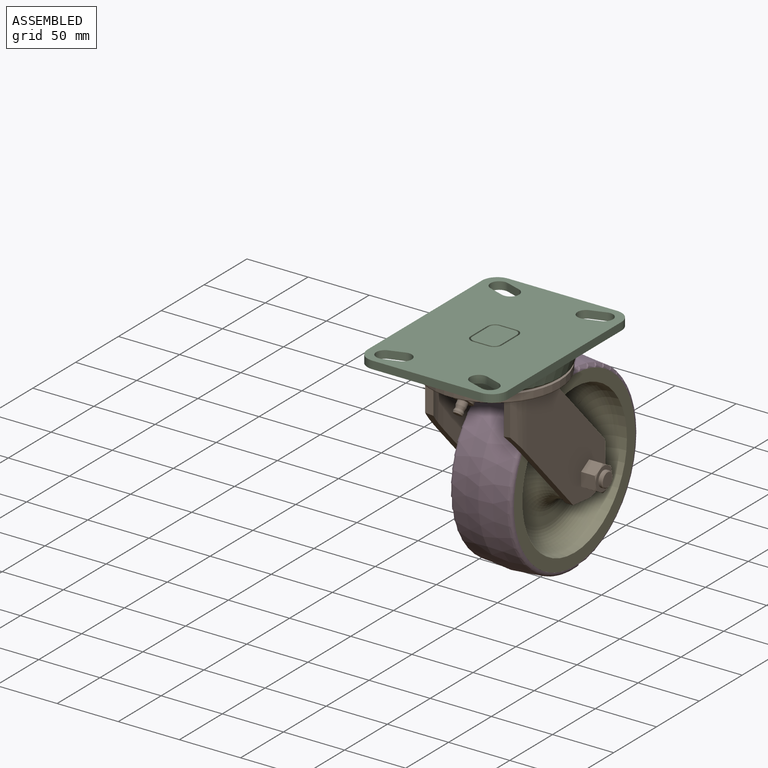
[diagram: assembled view]
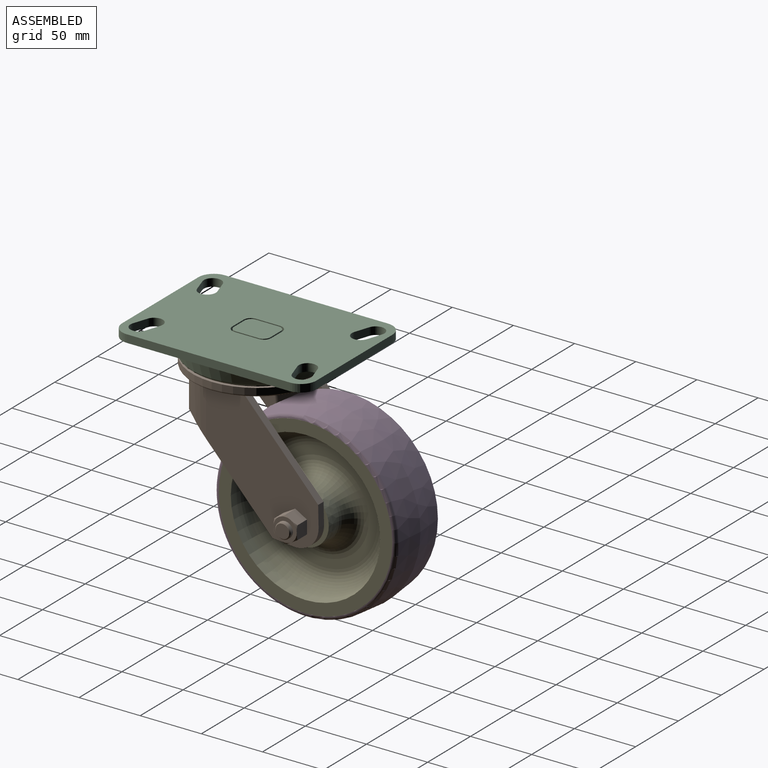
[diagram: assembled view, second angle]
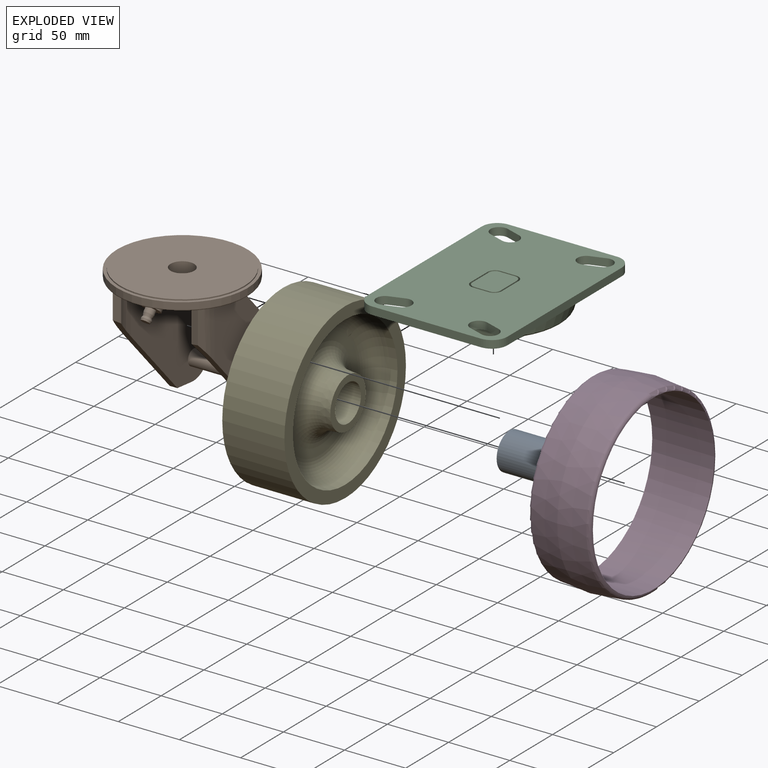
[diagram: exploded view]
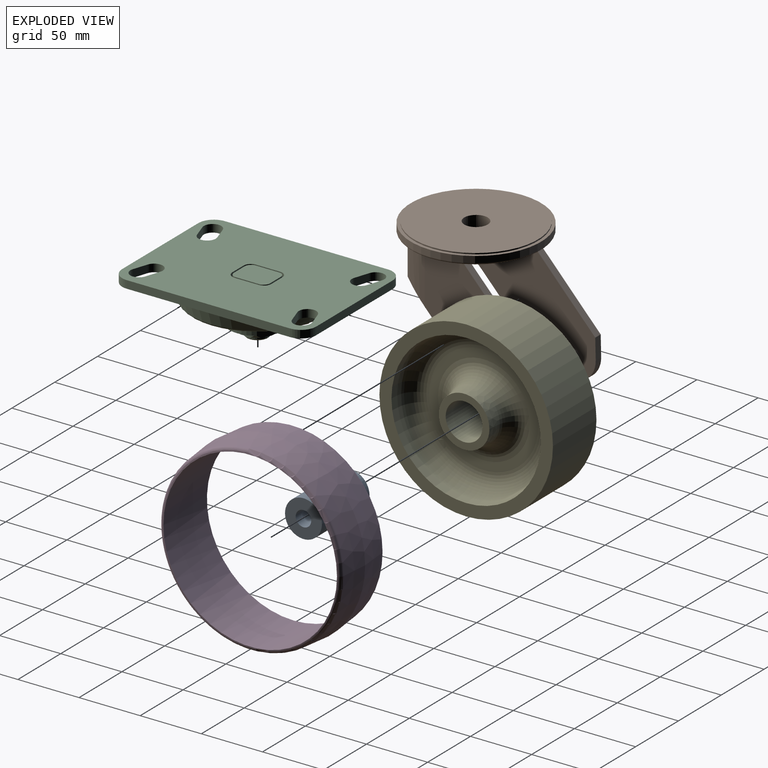
[diagram: exploded view, second angle]
ASSEMBLY  parts=5 mates=4
PART A: 4 faces, bbox 55.6x30.2x30.2 mm
  f0: plane 30.18x30.18mm, normal (-1,0,0), area 588.5mm2, adj f1,f3
  f1: cylinder r=15.09mm len=55.58mm, axis (1,0,0), area 5268.4mm2, adj f0,f2
  f2: plane 30.18x30.18mm, normal (1,0,0), area 588.5mm2, adj f1,f3
  f3: cylinder r=6.35mm len=55.58mm, axis (1,0,0), area 2217.4mm2, adj f0,f2
PART B: 88 faces, bbox 134.2x114.3x115.7 mm
  f0: plane 19.05x19.05mm, normal (0,0,-1), area 184.3mm2, adj f55,f56,f57,f58,f59,f60,f77
  f1: plane 85.34x52.83mm, normal (0,-1,0), area 3665.8mm2, adj f12,f13,f17,f28,f29,f41,f42
  f2: cylinder r=49.53mm len=45.66mm, axis (0,1,0), area 592.9mm2, adj f3,f6,f19,f40
  f3: plane 29.95x5.97mm, normal (-0.98,0,0.2), area 178.4mm2, adj f2,f4,f19,f40
  f4: cylinder r=49.53mm len=45.66mm, axis (0,1,0), area 555.8mm2, adj f3,f5,f19,f40
  f5: plane 106.43x92.08mm, normal (0,0,1), area 5577.9mm2, adj f4,f19,f36,f37,f38,f39,f40,f48
  f6: plane 106.43x92.08mm, normal (0,0,-1), area 5390.3mm2, adj f2,f19,f36,f37,f38,f39,f40,f49
  f7: plane 29.95x5.97mm, normal (-0.98,0,-0.2), area 178.4mm2, adj f8,f11,f19,f35
  f8: cylinder r=49.53mm len=45.66mm, axis (0,1,0), area 592.9mm2, adj f7,f9,f19,f35
  f9: plane 106.43x92.08mm, normal (0,0,1), area 5390.3mm2, adj f8,f19,f31,f32,f33,f34,f35,f61
  f10: plane 106.43x92.08mm, normal (0,0,-1), area 5577.9mm2, adj f11,f19,f31,f32,f33,f34,f35,f48
  f11: cylinder r=49.53mm len=45.66mm, axis (0,1,0), area 555.8mm2, adj f7,f10,f19,f35
  f12: cylinder r=9.65mm len=19.3mm, axis (0,-1,0), area 724mm2, adj f1,f24
  f13: torus R=41.91mm, axis (0,-1,0), area 69.7mm2, adj f1,f18,f28,f29
  f14: cylinder r=43.18mm len=55.37mm, axis (0,-1,0), area 183.2mm2, adj f15,f17,f27,f28,f29,f30
  f15: torus R=43.43mm, axis (0,-1,0), area 24.1mm2, adj f14,f19,f25,f26
  f16: torus R=43.43mm, axis (0,-1,0), area 24.1mm2, adj f18,f19,f25,f26
  f17: torus R=41.91mm, axis (0,-1,0), area 69.7mm2, adj f1,f14,f28,f29
  f18: cylinder r=43.18mm len=55.37mm, axis (0,-1,0), area 183.2mm2, adj f13,f16,f27,f28,f29,f30
  f19: plane 104.14x104.14mm, normal (0,-1,0), area 3488.6mm2, adj f2,f3,f4,f5,f6,f7,f8,f9
  f20: torus R=52.07mm, axis (0,-1,0), area 662.8mm2, adj f19,f21
  f21: cylinder r=53.34mm len=106.68mm, axis (0,-1,0), area 1787.7mm2, adj f20,f22
  f22: plane 106.68x106.68mm, normal (0,1,0), area 831mm2, adj f21,f23
  f23: cylinder r=50.8mm len=101.6mm, axis (0,-1,0), area 324.3mm2, adj f22,f24
  f24: plane 101.6x101.6mm, normal (0,1,0), area 7814.6mm2, adj f12,f23
  f25: cylinder r=0.25mm len=66.51mm, axis (-1,0,0), area 26.5mm2, adj f15,f16,f19,f27
  f26: cylinder r=0.25mm len=66.51mm, axis (-1,0,0), area 26.5mm2, adj f15,f16,f19,f30
  f27: plane 66.27x2.79mm, normal (0,0,-1), area 185.2mm2, adj f14,f18,f25,f28
  f28: cylinder r=1.27mm len=67.03mm, axis (-1,0,0), area 132.6mm2, adj f1,f13,f14,f17,f18,f27
  f29: cylinder r=1.27mm len=67.03mm, axis (-1,0,0), area 132.6mm2, adj f1,f13,f14,f17,f18,f30
  f30: plane 66.27x2.79mm, normal (0,0,1), area 185.2mm2, adj f14,f18,f26,f29
  f31: plane 70.16x64.7mm, normal (0.74,0.68,0), area 606mm2, adj f9,f10,f19,f32
  f32: plane 16.8x6.35mm, normal (1,0.02,0), area 106.7mm2, adj f9,f10,f31,f33
  f33: cylinder r=19.05mm len=21.01mm, axis (0,0,-1), area 205.2mm2, adj f9,f10,f32,f34
  f34: plane 16.71x6.35mm, normal (-0.1,-0.99,0), area 106.7mm2, adj f9,f10,f33,f35
  f35: plane 76.17x70.26mm, normal (-0.74,-0.68,0), area 650.4mm2, adj f7,f8,f9,f10,f11,f34
  f36: plane 70.16x64.7mm, normal (0.74,0.68,0), area 606mm2, adj f5,f6,f19,f37
  f37: plane 16.8x6.35mm, normal (1,0.02,0), area 106.7mm2, adj f5,f6,f36,f38
  f38: cylinder r=19.05mm len=21.01mm, axis (0,0,-1), area 205.2mm2, adj f5,f6,f37,f39
  f39: plane 16.71x6.35mm, normal (-0.1,-0.99,0), area 106.7mm2, adj f5,f6,f38,f40
  f40: plane 76.17x70.26mm, normal (-0.74,-0.68,0), area 650.4mm2, adj f2,f3,f4,f5,f6,f39
  f41: cylinder r=7.62mm len=19.9mm, axis (-0.67,-0.74,0), area 309mm2, adj f1,f42
  f42: plane 15.24x10.96mm, normal (-0.67,-0.74,0), area 132mm2, adj f1,f41,f43
  f43: cylinder r=3.94mm len=8.4mm, axis (-0.67,-0.74,0), area 94.2mm2, adj f42,f44
  f44: cone r=3.94mm half-angle=15deg, axis (0.67,0.74,0), area 59.4mm2, adj f43,f45
  f45: cone r=3.26mm half-angle=22.4deg, axis (-0.67,-0.74,0), area 40.4mm2, adj f44,f46
  f46: cone r=3.94mm half-angle=15deg, axis (0.67,0.74,0), area 40.5mm2, adj f45,f47
  f47: plane 6.98x5.18mm, normal (-0.67,-0.74,0), area 38.2mm2, adj f46
  f48: cylinder r=6.35mm len=61.91mm, axis (0,0,1), area 2470.2mm2, adj f5,f10
  f49: plane 11.94x11.01mm, normal (-1,0,0), area 128.1mm2, adj f6,f50,f54,f58,f59
  f50: plane 11.94x9.53mm, normal (-0.5,0.87,0), area 128.1mm2, adj f6,f49,f51,f57,f58
  f51: plane 11.94x9.53mm, normal (0.5,0.87,0), area 128.1mm2, adj f6,f50,f52,f56,f57
  f52: plane 11.94x11.01mm, normal (1,0,0), area 128.1mm2, adj f6,f51,f53,f55,f56
  f53: plane 11.94x9.53mm, normal (0.5,-0.87,0), area 128.1mm2, adj f6,f52,f54,f55,f60
  f54: plane 11.94x9.53mm, normal (-0.5,-0.87,0), area 128.1mm2, adj f6,f49,f53,f59,f60
  f55: cone r=9.53mm half-angle=60deg, axis (0,0,1), area 5.6mm2, adj f0,f52,f53
  f56: cone r=9.53mm half-angle=60deg, axis (0,0,1), area 5.6mm2, adj f0,f51,f52
  f57: cone r=9.53mm half-angle=60deg, axis (0,0,1), area 5.6mm2, adj f0,f50,f51
  f58: cone r=9.53mm half-angle=60deg, axis (0,0,1), area 5.6mm2, adj f0,f49,f50
  f59: cone r=9.53mm half-angle=60deg, axis (0,0,1), area 5.6mm2, adj f0,f49,f54
  f60: cone r=9.53mm half-angle=60deg, axis (0,0,1), area 5.6mm2, adj f0,f53,f54
  f61: plane 11.94x11.01mm, normal (-1,0,0), area 128.1mm2, adj f9,f62,f66,f70,f71
  f62: plane 11.94x9.53mm, normal (-0.5,0.87,0), area 128.1mm2, adj f9,f61,f63,f71,f72
  f63: plane 11.94x9.53mm, normal (0.5,0.87,0), area 128.1mm2, adj f9,f62,f64,f72,f73
  f64: plane 11.94x11.01mm, normal (1,0,0), area 128.1mm2, adj f9,f63,f65,f73,f74
  f65: plane 11.94x9.53mm, normal (0.5,-0.87,0), area 128.1mm2, adj f9,f64,f66,f74,f76
  f66: plane 11.94x9.53mm, normal (-0.5,-0.87,0), area 128.1mm2, adj f9,f61,f65,f70,f76
  f67: plane 11.19x11.19mm, normal (0,0,1), area 98.3mm2, adj f68
  f68: cone r=6.35mm half-angle=45deg, axis (0,0,-1), area 40.1mm2, adj f67,f69
  f69: cylinder r=6.35mm len=12.7mm, axis (0,0,1), area 96.5mm2, adj f68,f75
  f70: cone r=11.43mm half-angle=60deg, axis (0,0,-1), area 5.6mm2, adj f61,f66,f75
  f71: cone r=11.43mm half-angle=60deg, axis (0,0,-1), area 5.6mm2, adj f61,f62,f75
  f72: cone r=11.43mm half-angle=60deg, axis (0,0,-1), area 5.6mm2, adj f62,f63,f75
  f73: cone r=11.43mm half-angle=60deg, axis (0,0,-1), area 5.6mm2, adj f63,f64,f75
  f74: cone r=11.43mm half-angle=60deg, axis (0,0,-1), area 5.6mm2, adj f64,f65,f75
  f75: plane 19.05x19.05mm, normal (0,0,1), area 158.3mm2, adj f69,f70,f71,f72,f73,f74,f76
  f76: cone r=11.43mm half-angle=60deg, axis (0,0,-1), area 5.6mm2, adj f65,f66,f75
  f77: cylinder r=5.66mm len=11.33mm, axis (0,0,1), area 283.2mm2, adj f0,f78
  f78: plane 11.33x11.33mm, normal (0,0,-1), area 55.1mm2, adj f77,f79
  f79: cylinder r=3.81mm len=7.62mm, axis (0,0,1), area 30.4mm2, adj f78,f80
  f80: plane 7.62x7.62mm, normal (0,0,-1), area 16.4mm2, adj f79,f81
  f81: torus R=3.05mm, axis (0,0,1), area 13.7mm2, adj f80,f82
  f82: cylinder r=2.54mm len=5.08mm, axis (0,0,1), area 4.1mm2, adj f81,f83
  f83: torus R=3.05mm, axis (0,0,1), area 13.7mm2, adj f82,f84
  f84: revolved ~8x8mm, area 135.3mm2, adj f83,f85
  f85: plane 6.1x6.1mm, normal (0,0,-1), area 24.1mm2, adj f84,f87
  f86: plane 2.54x2.54mm, normal (0,0,-1), area 5.1mm2, adj f87
  f87: cylinder r=1.27mm len=5.08mm, axis (0,0,1), area 40.5mm2, adj f85,f86
PART C: 68 faces, bbox 158.8x44.5x123.6 mm
  f0: plane 158.75x114.3mm, normal (0,-1,0), area 6419.1mm2, adj f8,f9,f10,f11,f12,f13,f14,f15
  f1: plane 47.75x47.75mm, normal (0,-1,0), area 1129.5mm2, adj f2,f34,f35,f36,f37,f38,f39
  f2: cylinder r=23.88mm len=47.75mm, axis (0,1,0), area 609.7mm2, adj f1,f3
  f3: plane 47.75x47.75mm, normal (0,1,0), area 1498.2mm2, adj f2,f4
  f4: cylinder r=9.65mm len=19.3mm, axis (0,1,0), area 739.4mm2, adj f3,f5
  f5: plane 102.94x102.94mm, normal (0,-1,0), area 8030mm2, adj f4,f6
  f6: torus R=51.47mm, axis (0,1,0), area 1071mm2, adj f5,f7
  f7: cone r=53.9mm half-angle=17.3deg, axis (0,1,0), area 3448.8mm2, adj f6,f8
  f8: torus R=57.08mm, axis (0,1,0), area 115.3mm2, adj f0,f7
  f9: plane 88.9x6.35mm, normal (-1,0,0), area 564.5mm2, adj f0,f10,f16,f17
  f10: cylinder r=12.7mm len=12.7mm, axis (0,1,0), area 126.7mm2, adj f0,f9,f11,f17
  f11: plane 133.35x6.35mm, normal (0,0,-1), area 846.8mm2, adj f0,f10,f12,f17
  f12: cylinder r=12.7mm len=12.7mm, axis (0,1,0), area 126.7mm2, adj f0,f11,f13,f17
  f13: plane 88.9x6.35mm, normal (1,0,0), area 564.5mm2, adj f0,f12,f14,f17
  f14: cylinder r=12.7mm len=12.7mm, axis (0,1,0), area 126.7mm2, adj f0,f13,f15,f17
  f15: plane 133.35x6.35mm, normal (0,0,1), area 846.8mm2, adj f0,f14,f16,f17
  f16: cylinder r=12.7mm len=12.7mm, axis (0,1,0), area 126.7mm2, adj f0,f9,f15,f17
  f17: plane 158.75x114.3mm, normal (0,1,0), area 15877.6mm2, adj f9,f10,f11,f12,f13,f14,f15,f16
  f18: plane 11.94x6.35mm, normal (0.95,0,0.31), area 79.8mm2, adj f0,f17,f19,f21
  f19: cylinder r=7.11mm len=13.87mm, axis (0,1,0), area 141.9mm2, adj f0,f17,f18,f20
  f20: plane 11.94x6.35mm, normal (-0.95,0,-0.31), area 79.8mm2, adj f0,f17,f19,f21
  f21: cylinder r=7.11mm len=13.87mm, axis (0,1,0), area 141.9mm2, adj f0,f17,f18,f20
  f22: plane 11.94x6.35mm, normal (-0.95,0,0.31), area 79.8mm2, adj f0,f17,f23,f25
  f23: cylinder r=7.11mm len=13.87mm, axis (0,1,0), area 141.9mm2, adj f0,f17,f22,f24
  f24: plane 11.94x6.35mm, normal (0.95,0,-0.31), area 79.8mm2, adj f0,f17,f23,f25
  f25: cylinder r=7.11mm len=13.87mm, axis (0,1,0), area 141.9mm2, adj f0,f17,f22,f24
  f26: plane 11.94x6.35mm, normal (-0.95,0,0.31), area 79.8mm2, adj f0,f17,f27,f29
  f27: cylinder r=7.11mm len=13.87mm, axis (0,1,0), area 141.9mm2, adj f0,f17,f26,f28
  f28: plane 11.94x6.35mm, normal (0.95,0,-0.31), area 79.8mm2, adj f0,f17,f27,f29
  f29: cylinder r=7.11mm len=13.87mm, axis (0,1,0), area 141.9mm2, adj f0,f17,f26,f28
  f30: plane 11.94x6.35mm, normal (0.95,0,0.31), area 79.8mm2, adj f0,f17,f31,f33
  f31: cylinder r=7.11mm len=13.87mm, axis (0,1,0), area 141.9mm2, adj f0,f17,f30,f32
  f32: plane 11.94x6.35mm, normal (-0.95,0,-0.31), area 79.8mm2, adj f0,f17,f31,f33
  f33: cylinder r=7.11mm len=13.87mm, axis (0,1,0), area 141.9mm2, adj f0,f17,f30,f32
  f34: plane 13.82x7.98mm, normal (-0.87,0,-0.5), area 83.4mm2, adj f1,f35,f39,f43,f48,f49
  f35: plane 15.96x5.84mm, normal (0,0,-1), area 83.4mm2, adj f1,f34,f36,f47,f48,f49
  f36: plane 13.82x7.98mm, normal (0.87,0,-0.5), area 83.4mm2, adj f1,f35,f37,f46,f47,f49
  f37: plane 13.82x7.98mm, normal (0.87,0,0.5), area 83.4mm2, adj f1,f36,f38,f45,f46,f49
  f38: plane 15.96x5.84mm, normal (0,0,1), area 83.4mm2, adj f1,f37,f39,f44,f45,f49
  f39: plane 13.82x7.98mm, normal (-0.87,0,0.5), area 83.4mm2, adj f1,f34,f38,f43,f44,f49
  f40: plane 16.76x16.76mm, normal (0,-1,0), area 220.7mm2, adj f41
  f41: cone r=8.38mm half-angle=45deg, axis (0,1,0), area 101.8mm2, adj f40,f42
  f42: cylinder r=9.65mm len=19.3mm, axis (0,1,0), area 200.3mm2, adj f41,f49
  f43: cone r=14.38mm half-angle=30deg, axis (0,1,0), area 9.9mm2, adj f34,f39,f49
  f44: cone r=14.38mm half-angle=30deg, axis (0,1,0), area 9.9mm2, adj f38,f39,f49
  f45: cone r=14.38mm half-angle=30deg, axis (0,1,0), area 9.9mm2, adj f37,f38,f49
  f46: cone r=14.38mm half-angle=30deg, axis (0,1,0), area 9.9mm2, adj f36,f37,f49
  f47: cone r=14.38mm half-angle=30deg, axis (0,1,0), area 9.9mm2, adj f35,f36,f49
  f48: cone r=14.38mm half-angle=30deg, axis (0,1,0), area 9.9mm2, adj f34,f35,f49
  f49: plane 28.76x27.64mm, normal (0,-1,0), area 339mm2, adj f34,f35,f36,f37,f38,f39,f42,f43
  f50: plane 12.7x5.08mm, normal (1,0,0), area 64.5mm2, adj f17,f51,f65,f66
  f51: cylinder r=6.35mm len=6.35mm, axis (0,1,0), area 50.7mm2, adj f17,f50,f52,f66
  f52: plane 19.3x5.08mm, normal (0,0,-1), area 98.1mm2, adj f17,f51,f53,f66
  f53: cylinder r=6.35mm len=6.35mm, axis (0,1,0), area 50.7mm2, adj f17,f52,f54,f66
  f54: plane 12.7x5.08mm, normal (-1,0,0), area 64.5mm2, adj f17,f53,f55,f66
  f55: cylinder r=6.35mm len=6.35mm, axis (0,1,0), area 50.7mm2, adj f17,f54,f56,f66
  f56: plane 19.3x5.08mm, normal (0,0,1), area 98.1mm2, adj f17,f55,f65,f66
  f57: plane 12.7x5.08mm, normal (-1,0,0), area 64.5mm2, adj f58,f64,f66,f67
  f58: cylinder r=5.08mm len=5.08mm, axis (0,1,0), area 40.5mm2, adj f57,f59,f66,f67
  f59: plane 19.3x5.08mm, normal (0,0,-1), area 98.1mm2, adj f58,f60,f66,f67
  f60: cylinder r=5.08mm len=5.08mm, axis (0,1,0), area 40.5mm2, adj f59,f61,f66,f67
  f61: plane 12.7x5.08mm, normal (1,0,0), area 64.5mm2, adj f60,f62,f66,f67
  f62: cylinder r=5.08mm len=5.08mm, axis (0,1,0), area 40.5mm2, adj f61,f63,f66,f67
  f63: plane 19.3x5.08mm, normal (0,0,1), area 98.1mm2, adj f62,f64,f66,f67
  f64: cylinder r=5.08mm len=5.08mm, axis (0,1,0), area 40.5mm2, adj f57,f63,f66,f67
  f65: cylinder r=6.35mm len=6.35mm, axis (0,1,0), area 50.7mm2, adj f17,f50,f56,f66
  f66: plane 32x25.4mm, normal (0,1,0), area 126.9mm2, adj f50,f51,f52,f53,f54,f55,f56,f57
  f67: plane 29.46x22.86mm, normal (0,1,0), area 651.4mm2, adj f57,f58,f59,f60,f61,f62,f63,f64
PART D: 5 faces, bbox 50.8x160.7x160.7 mm
  f0: cylinder r=70.95mm len=141.9mm, axis (1,0,0), area 22646.9mm2, adj f2,f4
  f1: cone r=76.2mm half-angle=5deg, axis (-1,0,0), area 10620.5mm2, adj f2,f3
  f2: torus R=70.95mm, axis (1,0,0), area 2246.4mm2, adj f0,f1
  f3: cone r=74.24mm half-angle=5deg, axis (1,0,0), area 10620.5mm2, adj f1,f4
  f4: torus R=70.95mm, axis (1,0,0), area 2246.4mm2, adj f0,f3
PART E: 16 faces, bbox 55.6x141.9x141.9 mm
  f0: plane 41.4x41.4mm, normal (-1,0,0), area 631.1mm2, adj f1,f14
  f1: cone r=20.7mm half-angle=5deg, axis (1,0,0), area 1110mm2, adj f0,f2
  f2: torus R=37.37mm, axis (1,0,0), area 4105.9mm2, adj f1,f3
  f3: plane 89.25x89.25mm, normal (-1,0,0), area 1867.8mm2, adj f2,f4
  f4: torus R=44.62mm, axis (1,0,0), area 8124.7mm2, adj f3,f5
  f5: cone r=60.56mm half-angle=5deg, axis (-1,0,0), area 2289.1mm2, adj f4,f6
  f6: plane 141.9x141.9mm, normal (-1,0,0), area 4092.2mm2, adj f5,f15
  f7: plane 141.9x141.9mm, normal (1,0,0), area 4092.2mm2, adj f8,f15
  f8: cone r=61.09mm half-angle=5deg, axis (1,0,0), area 2289.1mm2, adj f7,f9
  f9: torus R=44.62mm, axis (1,0,0), area 8124.7mm2, adj f8,f10
  f10: plane 89.25x89.25mm, normal (1,0,0), area 1867.8mm2, adj f9,f11
  f11: torus R=37.37mm, axis (1,0,0), area 4105.9mm2, adj f10,f12
  f12: cone r=21.43mm half-angle=5deg, axis (-1,0,0), area 1110mm2, adj f11,f13
  f13: plane 41.4x41.4mm, normal (1,0,0), area 631.1mm2, adj f12,f14
  f14: cylinder r=15.09mm len=55.58mm, axis (1,0,0), area 5268.4mm2, adj f0,f13
  f15: cylinder r=70.95mm len=141.9mm, axis (1,0,0), area 22646.9mm2, adj f6,f7
PLACE A rot(axis=(1,0,0),90deg) t=(-54.3,59.91,-125.32)mm
PLACE B rot(axis=(0.58,0.58,0.58),120deg) t=(-54.3,2.76,-11.02)mm
PLACE C rot(axis=(0.58,0.58,0.58),120deg) t=(-54.3,2.76,-11.02)mm
PLACE D rot(axis=(1,0,0),90deg) t=(-54.3,59.91,-125.32)mm
PLACE E rot(axis=(1,0,0),90deg) t=(-54.3,59.91,-125.32)mm
MATE fastened E.f15 <-> D.f0  axis (1,0,0) through (-54.3,59.91,-125.32)mm
MATE revolute B.f12 <-> C.f2  axis (0,0,1) through (-54.3,2.76,-28.8)mm
MATE revolute A.f1 <-> B.f48  axis (1,0,0) through (-54.3,59.91,-125.32)mm
MATE fastened A.f1 <-> E.f1  axis (1,0,0) through (-54.3,59.91,-125.32)mm
